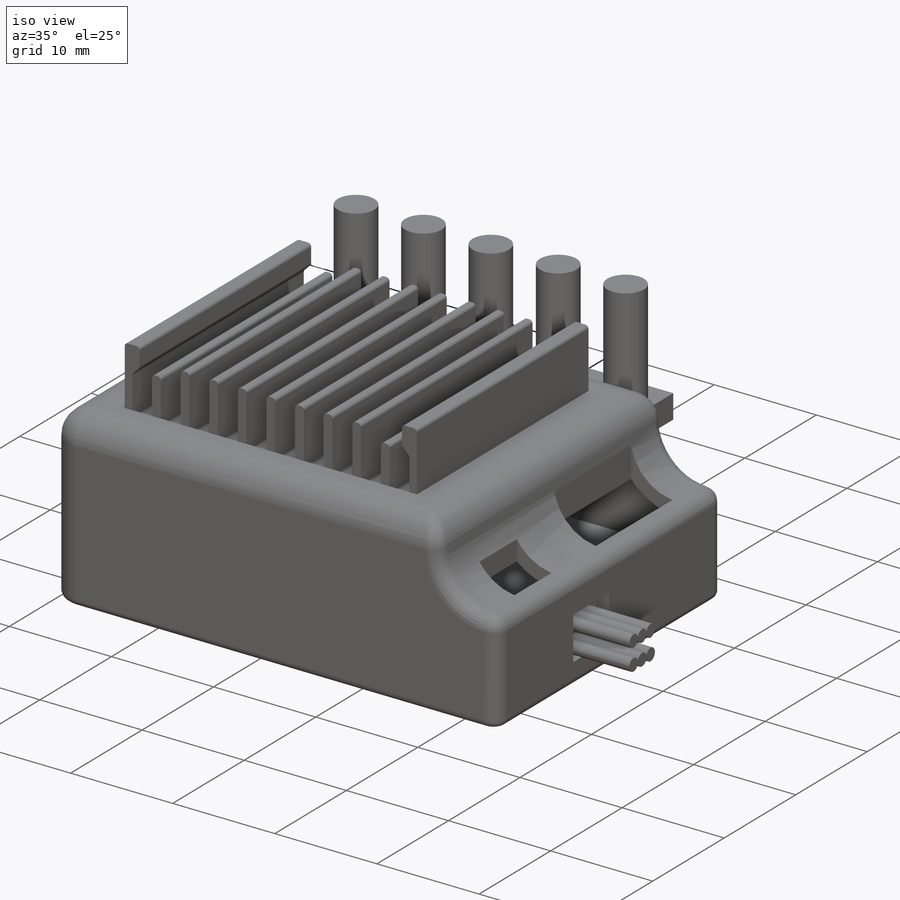
[diagram: iso view]
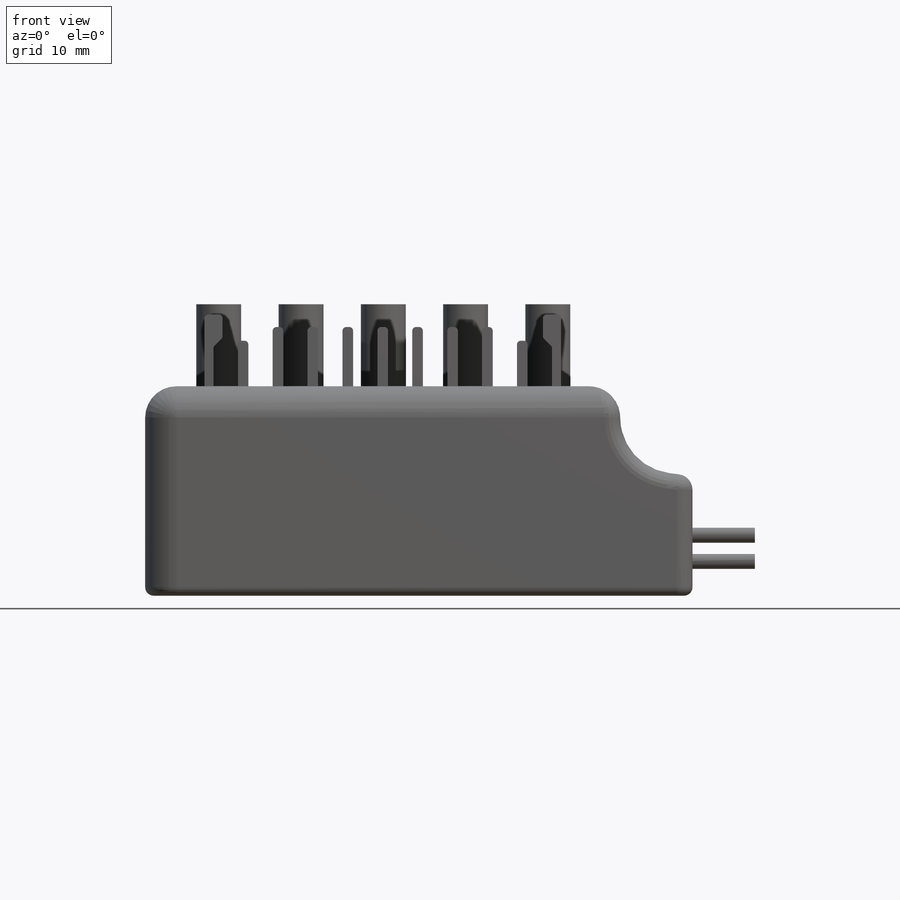
[diagram: front view]
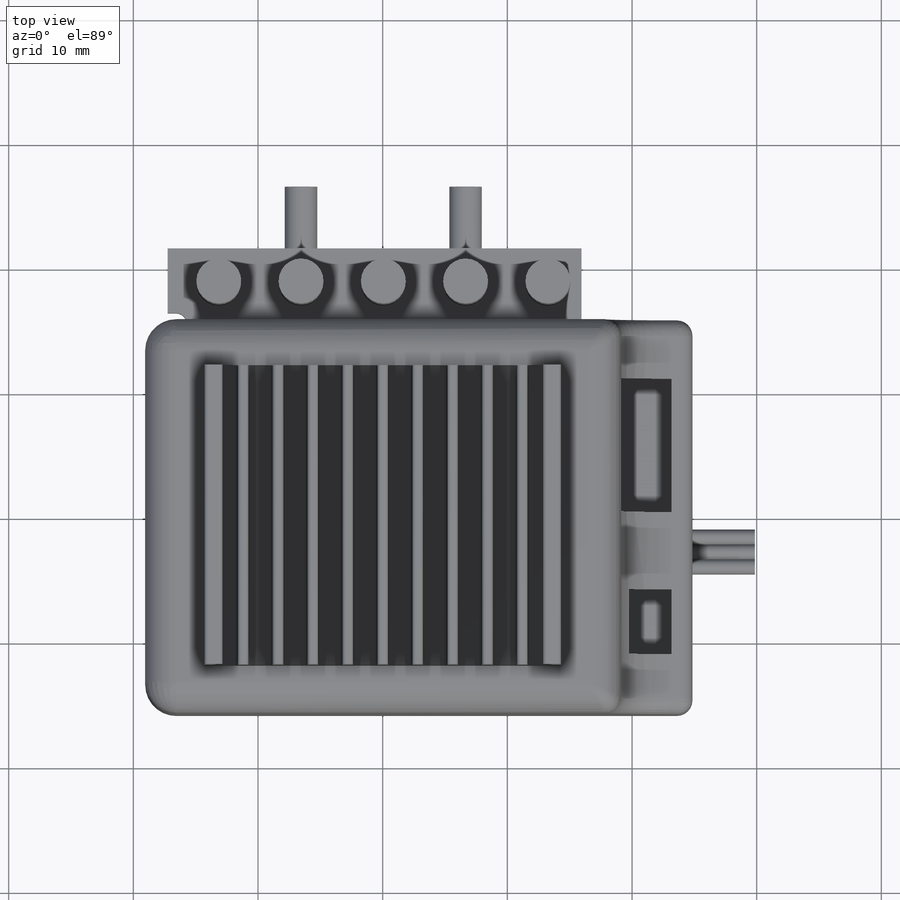
[diagram: top view]
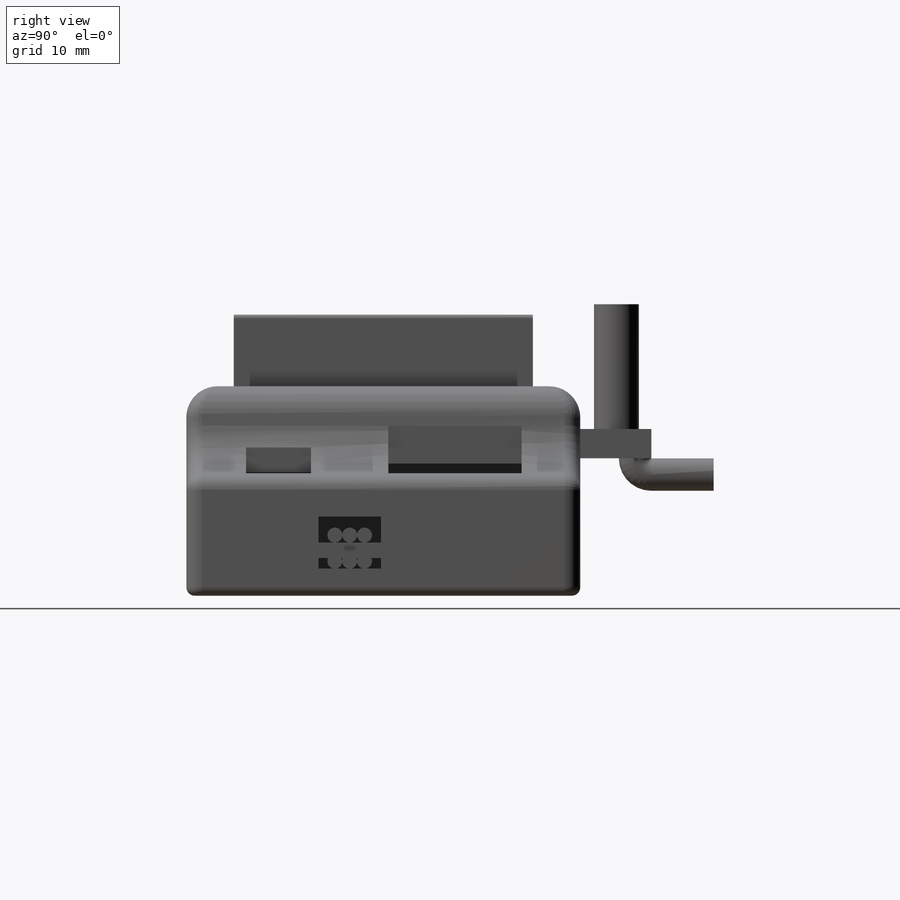
[diagram: right view]
SOLIDWORKS PART (.sldprt)
format: sldprt  version: not decoded by parser v0  size: 856,576 bytes
history: native  units: mm
features: sketch x12, extrude x7, plane x4, fillet x4, cut_extrude x3, material x1, shell x1, revolve x1 (+12 scaffold rows collapsed; 3 parser-record rows omitted)
feature tree (48):
  scaffold x12  (default folders/planes/origin — collapsed)
  material  "Material <nicht festgelegt>"
  plane  "Ebene vorne"
  plane  "Ebene oben"
  plane  "Ebene rechts"
  parser-record x3  (decoder bookkeeping rows leaked as tree rows — omitted from the tree; the rows remain in map.json)
  sketch  "Skizze1"  dims[c1.D5=6.5mm c1.D6=4.5mm c1.D1=43.9mm c1.D2=38.1mm c1.D3=16.8mm c1.D4=9.6mm c2.D5=2.5mm]
  extrude  "Aufsatz-Linear austragen1"  Depth=31.6mm
  fillet  "Verrundung3"  Radius=2.5mm
  fillet  "Verrundung4"  Radius=1.25mm
  fillet  "Verrundung5"  Radius=0.675mm
  sketch  "Skizze2"  dims[D1=4.7mm D2=3.75mm D3=24.1mm]
  shell  "Wandung1"  Thickness=1.3mm
  sketch  "Skizze4"  dims[c1.D1=31.7mm c1.D2=2.4mm c1.D3=3.4mm c1.D4=3.2mm c2.D1=3.0mm]
  cut_extrude  "Schnitt-Linear austragen1"  [1 undecoded]
  sketch  "Skizze7"  dims[D1=4.7mm D2=10.7mm D3=5.2mm D4=4.8mm D5=3.4mm D6=4.05mm D7=1.7mm D8=~1.864014mm]
  cut_extrude  "Schnitt-Linear austragen2"  [1 undecoded]
  plane  "Ebene1"
  sketch  "Skizze15"  dims[D1=4.2mm D2=5.0mm D3=10.6mm D4=2.15mm]
  cut_extrude  "Schnitt-Linear austragen3"  [1 undecoded]
  sketch  "Skizze3"  dims[D1=1.25mm D2=27.0mm D3=3.0mm]
  extrude  "Platine1"  Depth=1.6mm
  sketch  "Skizze5"  dims[D6=0.8mm D1=33.2mm D2=37.3mm D3=1.6mm D4=2.3mm D5=3.3mm D7=5.2mm D8=3.1mm D9=4.0mm D10=1.8mm]
  extrude  "Platine2"  Depth=2.35mm
  sketch  "Skizze8"  dims[c1.D1=5.75mm c1.D2=1.0mm c1.D3=2.1mm c1.D4=0.85mm c1.D5=1.95mm c1.D6=4.71mm c1.D7=0.05mm c2.D6=0.05mm c2.D8=0.725mm c2.D9=2.6mm c2.D10=1.45mm c2.D11=~1.409442mm c3.D11=135.0deg c3.D12=2.5mm]
  extrude  "Aufsatz-Linear austragen4"  Depth=24mm
  fillet  "Verrundung6"  Radius=0.3mm
  sketch  "Skizze14"  dims[D5=3.6mm D1=5.2mm D2=1.4mm D3=0.1mm D4=0.2mm]
  extrude  "Aufsatz-Linear austragen9"  Depth=10mm
  sketch  "Skizze16"  dims[D1=1.2mm D2=1.19mm]
  extrude  "Aufsatz-Linear austragen11"  Depth=5mm
  sketch  "Skizze17"  dims[D1=2.6mm D2=1.31mm]
  extrude  "Aufsatz-Linear austragen12"  Depth=5mm
  revolve  "Rotation1"  [1 undecoded]
  sketch  "Skizze17<2>"  dims[D1=90.0deg]
decode coverage: 24 of 28 modeling features carry decoded parameters
note: ~ marks probable driven/reference dimensions
note: 4 parameter values undecoded
summary: no parameter record found for 4 features
note: suppression state not decoded; provenance and decode notes live in map.json
